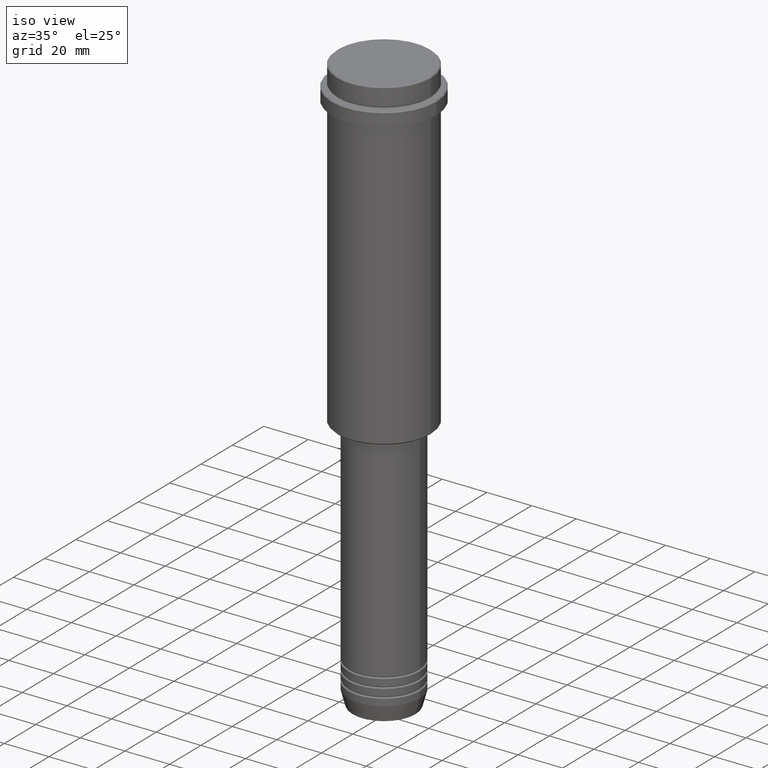
[diagram: clean part render]
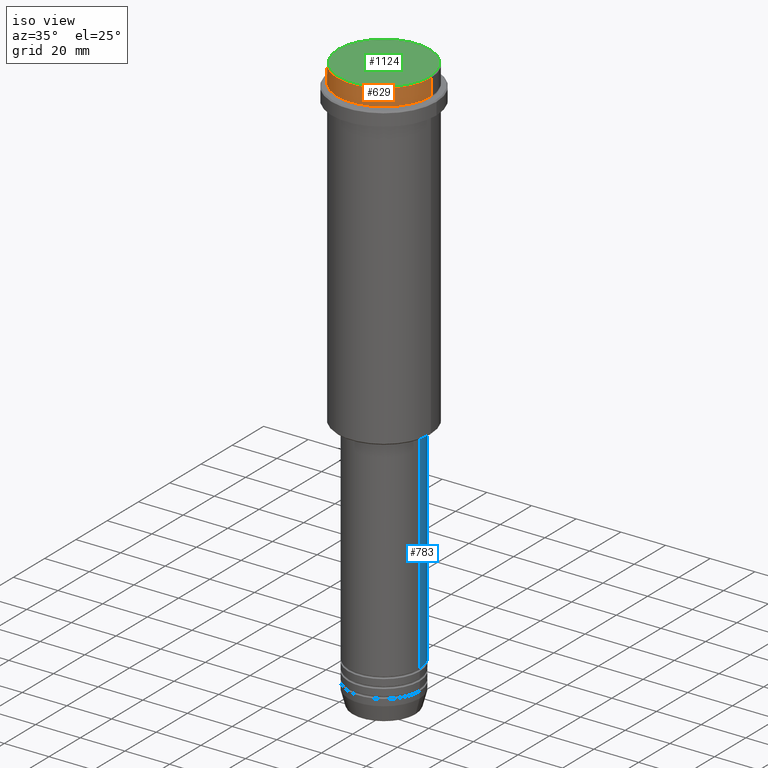
[diagram: same view with three faces highlighted in distinct colors, each labeled with its STEP entity id]
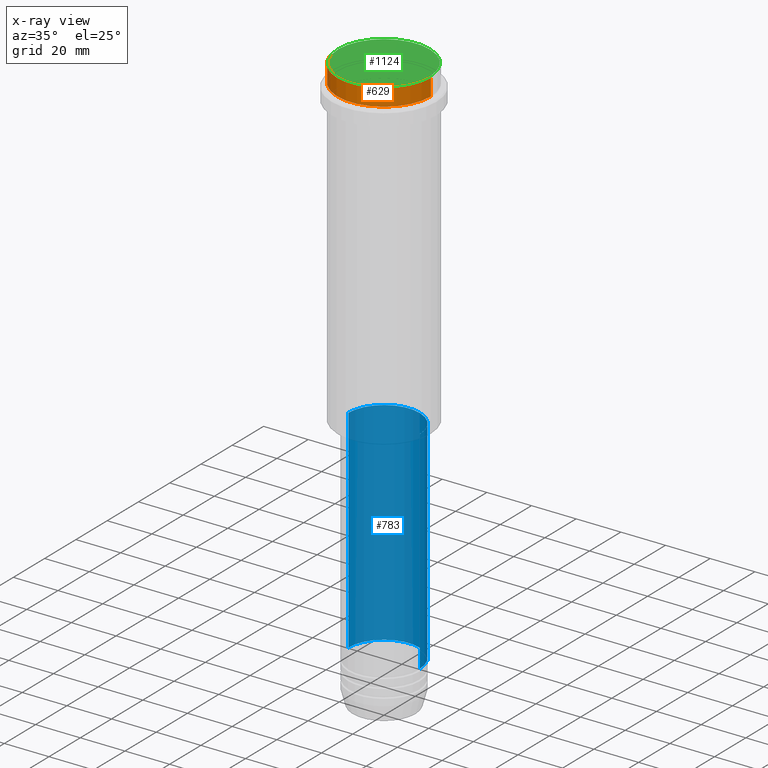
[diagram: x-ray of the same camera — body ghosted, the three highlighted faces saturated]
A machine part, iso view with three faces highlighted in distinct colors.
The next image is the same camera in x-ray (body ghosted, the three faces saturated) — at least one of them is partly hidden behind the body in this view.
Their STEP definitions:

[orange] entity #629 — the highlighted cylindrical surface (partial cylindrical patch) has radius 21 mm, axis along (-0, -0, 1).
#12 = DIRECTION ( 'NONE',  ( -0.000000000000000000, -0.000000000000000000, 1.000000000000000000 ) ) ;
#25 = VERTEX_POINT ( 'NONE', #1365 ) ;
#51 = DIRECTION ( 'NONE',  ( 0.000000000000000000, 0.000000000000000000, -1.000000000000000000 ) ) ;
#80 = VERTEX_POINT ( 'NONE', #183 ) ;
#183 = CARTESIAN_POINT ( 'NONE',  ( -21.00000000000000000, 2.571758278209441661E-15, -0.4999999999999276135 ) ) ;
#239 = CARTESIAN_POINT ( 'NONE',  ( 21.00000000000000000, 0.000000000000000000, -0.4999999999999276135 ) ) ;
#247 = CIRCLE ( 'NONE', #799, 21.00000000000000000 ) ;
#264 = CARTESIAN_POINT ( 'NONE',  ( 0.000000000000000000, 0.000000000000000000, 0.000000000000000000 ) ) ;
#278 = ORIENTED_EDGE ( 'NONE', *, *, #778, .T. ) ;
#291 = VERTEX_POINT ( 'NONE', #478 ) ;
#393 = CYLINDRICAL_SURFACE ( 'NONE', #1402, 21.00000000000000000 ) ;
#444 = DIRECTION ( 'NONE',  ( 1.000000000000000000, 0.000000000000000000, 0.000000000000000000 ) ) ;
#448 = LINE ( 'NONE', #853, #1149 ) ;
#472 = AXIS2_PLACEMENT_3D ( 'NONE', #986, #12, #444 ) ;
#478 = CARTESIAN_POINT ( 'NONE',  ( -21.00000000000000000, 2.571758278209441661E-15, -7.999999999999998224 ) ) ;
#503 = DIRECTION ( 'NONE',  ( -0.000000000000000000, -0.000000000000000000, 1.000000000000000000 ) ) ;
#510 = ORIENTED_EDGE ( 'NONE', *, *, #1184, .F. ) ;
#532 = EDGE_CURVE ( 'NONE', #816, #80, #247, .T. ) ;
#539 = DIRECTION ( 'NONE',  ( -0.000000000000000000, -0.000000000000000000, 1.000000000000000000 ) ) ;
#563 = CIRCLE ( 'NONE', #472, 21.00000000000000000 ) ;
#603 = FACE_OUTER_BOUND ( 'NONE', #920, .T. ) ;
#629 = ADVANCED_FACE ( 'NONE', ( #603 ), #393, .T. ) ;
#709 = DIRECTION ( 'NONE',  ( 1.000000000000000000, 0.000000000000000000, 0.000000000000000000 ) ) ;
#727 = ORIENTED_EDGE ( 'NONE', *, *, #1177, .T. ) ;
#759 = LINE ( 'NONE', #775, #1009 ) ;
#775 = CARTESIAN_POINT ( 'NONE',  ( -21.00000000000000000, 2.571758278209441661E-15, 0.000000000000000000 ) ) ;
#778 = EDGE_CURVE ( 'NONE', #291, #25, #563, .T. ) ;
#799 = AXIS2_PLACEMENT_3D ( 'NONE', #1260, #51, #709 ) ;
#816 = VERTEX_POINT ( 'NONE', #239 ) ;
#853 = CARTESIAN_POINT ( 'NONE',  ( 21.00000000000000000, 0.000000000000000000, 0.000000000000000000 ) ) ;
#920 = EDGE_LOOP ( 'NONE', ( #510, #278, #727, #1115 ) ) ;
#986 = CARTESIAN_POINT ( 'NONE',  ( 0.000000000000000000, 0.000000000000000000, -7.999999999999998224 ) ) ;
#1009 = VECTOR ( 'NONE', #539, 1000.000000000000000 ) ;
#1109 = DIRECTION ( 'NONE',  ( -0.000000000000000000, -0.000000000000000000, 1.000000000000000000 ) ) ;
#1115 = ORIENTED_EDGE ( 'NONE', *, *, #532, .T. ) ;
#1137 = DIRECTION ( 'NONE',  ( 1.000000000000000000, 0.000000000000000000, 0.000000000000000000 ) ) ;
#1149 = VECTOR ( 'NONE', #1109, 1000.000000000000000 ) ;
#1177 = EDGE_CURVE ( 'NONE', #25, #816, #448, .T. ) ;
#1184 = EDGE_CURVE ( 'NONE', #291, #80, #759, .T. ) ;
#1260 = CARTESIAN_POINT ( 'NONE',  ( 0.000000000000000000, 0.000000000000000000, -0.4999999999999276135 ) ) ;
#1365 = CARTESIAN_POINT ( 'NONE',  ( 21.00000000000000000, 0.000000000000000000, -7.999999999999998224 ) ) ;
#1402 = AXIS2_PLACEMENT_3D ( 'NONE', #264, #503, #1137 ) ;

[blue] entity #783 — the highlighted cylindrical surface (partial cylindrical patch) has radius 16 mm, axis along (-0, -0, 1).
#2 = CARTESIAN_POINT ( 'NONE',  ( -16.00000000000000000, 1.959434878635765131E-15, -240.9999999999998863 ) ) ;
#35 = DIRECTION ( 'NONE',  ( -0.000000000000000000, -0.000000000000000000, 1.000000000000000000 ) ) ;
#165 = DIRECTION ( 'NONE',  ( -0.000000000000000000, -0.000000000000000000, 1.000000000000000000 ) ) ;
#207 = DIRECTION ( 'NONE',  ( 1.000000000000000000, 0.000000000000000000, 0.000000000000000000 ) ) ;
#220 = CYLINDRICAL_SURFACE ( 'NONE', #795, 16.00000000000000000 ) ;
#226 = DIRECTION ( 'NONE',  ( 1.000000000000000000, 0.000000000000000000, 0.000000000000000000 ) ) ;
#233 = VERTEX_POINT ( 'NONE', #890 ) ;
#236 = CIRCLE ( 'NONE', #359, 16.00000000000000000 ) ;
#316 = DIRECTION ( 'NONE',  ( -0.000000000000000000, -0.000000000000000000, 1.000000000000000000 ) ) ;
#341 = CARTESIAN_POINT ( 'NONE',  ( 16.00000000000000000, 0.000000000000000000, 0.000000000000000000 ) ) ;
#342 = DIRECTION ( 'NONE',  ( -0.000000000000000000, -0.000000000000000000, 1.000000000000000000 ) ) ;
#346 = DIRECTION ( 'NONE',  ( -0.000000000000000000, -0.000000000000000000, 1.000000000000000000 ) ) ;
#359 = AXIS2_PLACEMENT_3D ( 'NONE', #1398, #316, #207 ) ;
#432 = EDGE_CURVE ( 'NONE', #1044, #678, #236, .T. ) ;
#517 = ORIENTED_EDGE ( 'NONE', *, *, #886, .T. ) ;
#553 = VECTOR ( 'NONE', #165, 1000.000000000000000 ) ;
#678 = VERTEX_POINT ( 'NONE', #2 ) ;
#700 = LINE ( 'NONE', #1135, #553 ) ;
#706 = VERTEX_POINT ( 'NONE', #1195 ) ;
#783 = ADVANCED_FACE ( 'NONE', ( #1082 ), #220, .T. ) ;
#795 = AXIS2_PLACEMENT_3D ( 'NONE', #999, #342, #226 ) ;
#802 = CARTESIAN_POINT ( 'NONE',  ( 0.000000000000000000, 0.000000000000000000, -146.0000000000000284 ) ) ;
#886 = EDGE_CURVE ( 'NONE', #678, #233, #700, .T. ) ;
#890 = CARTESIAN_POINT ( 'NONE',  ( -16.00000000000000355, 1.959434878635765526E-15, -146.0000000000000284 ) ) ;
#901 = ORIENTED_EDGE ( 'NONE', *, *, #1231, .F. ) ;
#939 = VECTOR ( 'NONE', #346, 1000.000000000000000 ) ;
#999 = CARTESIAN_POINT ( 'NONE',  ( 0.000000000000000000, 0.000000000000000000, 0.000000000000000000 ) ) ;
#1044 = VERTEX_POINT ( 'NONE', #1161 ) ;
#1082 = FACE_OUTER_BOUND ( 'NONE', #1410, .T. ) ;
#1134 = DIRECTION ( 'NONE',  ( 1.000000000000000000, 0.000000000000000000, 0.000000000000000000 ) ) ;
#1135 = CARTESIAN_POINT ( 'NONE',  ( -16.00000000000000000, 1.959434878635765131E-15, 0.000000000000000000 ) ) ;
#1161 = CARTESIAN_POINT ( 'NONE',  ( 16.00000000000000000, 0.000000000000000000, -240.9999999999998863 ) ) ;
#1195 = CARTESIAN_POINT ( 'NONE',  ( 16.00000000000000355, 0.000000000000000000, -146.0000000000000284 ) ) ;
#1230 = ORIENTED_EDGE ( 'NONE', *, *, #432, .T. ) ;
#1231 = EDGE_CURVE ( 'NONE', #1044, #706, #1316, .T. ) ;
#1313 = CIRCLE ( 'NONE', #1413, 16.00000000000000355 ) ;
#1316 = LINE ( 'NONE', #341, #939 ) ;
#1318 = ORIENTED_EDGE ( 'NONE', *, *, #1384, .F. ) ;
#1384 = EDGE_CURVE ( 'NONE', #706, #233, #1313, .T. ) ;
#1398 = CARTESIAN_POINT ( 'NONE',  ( 0.000000000000000000, 0.000000000000000000, -240.9999999999998863 ) ) ;
#1410 = EDGE_LOOP ( 'NONE', ( #1230, #517, #1318, #901 ) ) ;
#1413 = AXIS2_PLACEMENT_3D ( 'NONE', #802, #35, #1134 ) ;

[green] entity #1124 — the highlighted planar face has unit normal (0, -0, 1).
#102 = DIRECTION ( 'NONE',  ( -0.000000000000000000, -0.000000000000000000, 1.000000000000000000 ) ) ;
#203 = FACE_OUTER_BOUND ( 'NONE', #568, .T. ) ;
#322 = DIRECTION ( 'NONE',  ( 1.000000000000000000, 0.000000000000000000, 0.000000000000000000 ) ) ;
#424 = EDGE_CURVE ( 'NONE', #1285, #664, #489, .T. ) ;
#442 = CIRCLE ( 'NONE', #1237, 20.50000000000007461 ) ;
#489 = CIRCLE ( 'NONE', #969, 20.50000000000007461 ) ;
#552 = PLANE ( 'NONE',  #827 ) ;
#568 = EDGE_LOOP ( 'NONE', ( #1207, #594 ) ) ;
#594 = ORIENTED_EDGE ( 'NONE', *, *, #1141, .T. ) ;
#660 = DIRECTION ( 'NONE',  ( 1.000000000000000000, 0.000000000000000000, 0.000000000000000000 ) ) ;
#664 = VERTEX_POINT ( 'NONE', #855 ) ;
#705 = CARTESIAN_POINT ( 'NONE',  ( -20.50000000000007461, 0.000000000000000000, 0.000000000000000000 ) ) ;
#758 = CARTESIAN_POINT ( 'NONE',  ( 0.000000000000000000, 0.000000000000000000, 0.000000000000000000 ) ) ;
#827 = AXIS2_PLACEMENT_3D ( 'NONE', #1297, #961, #660 ) ;
#855 = CARTESIAN_POINT ( 'NONE',  ( 20.50000000000007461, 2.541142108230762213E-15, 0.000000000000000000 ) ) ;
#961 = DIRECTION ( 'NONE',  ( 0.000000000000000000, -0.000000000000000000, 1.000000000000000000 ) ) ;
#969 = AXIS2_PLACEMENT_3D ( 'NONE', #758, #1192, #1293 ) ;
#991 = CARTESIAN_POINT ( 'NONE',  ( 0.000000000000000000, 0.000000000000000000, 0.000000000000000000 ) ) ;
#1124 = ADVANCED_FACE ( 'NONE', ( #203 ), #552, .T. ) ;
#1141 = EDGE_CURVE ( 'NONE', #664, #1285, #442, .T. ) ;
#1192 = DIRECTION ( 'NONE',  ( -0.000000000000000000, -0.000000000000000000, 1.000000000000000000 ) ) ;
#1207 = ORIENTED_EDGE ( 'NONE', *, *, #424, .T. ) ;
#1237 = AXIS2_PLACEMENT_3D ( 'NONE', #991, #102, #322 ) ;
#1285 = VERTEX_POINT ( 'NONE', #705 ) ;
#1293 = DIRECTION ( 'NONE',  ( 1.000000000000000000, 0.000000000000000000, 0.000000000000000000 ) ) ;
#1297 = CARTESIAN_POINT ( 'NONE',  ( 0.000000000000000000, 0.000000000000000000, 0.000000000000000000 ) ) ;